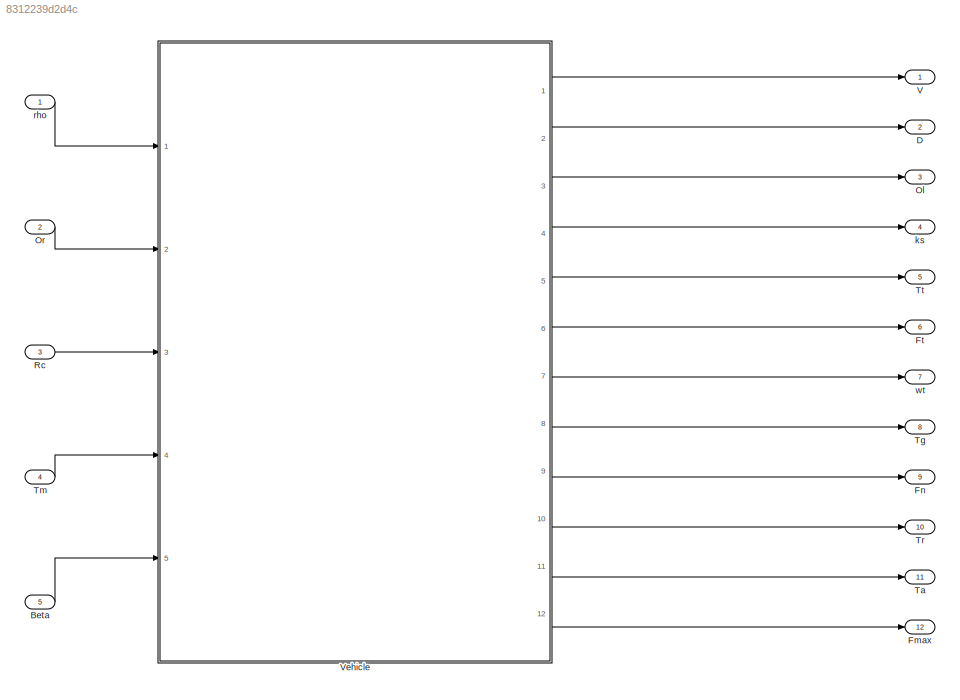
MODEL slx_8312239d2d4c
KIND model
BLOCK [Inport] Beta
  IconDisplay = Port number
  Port = 5
BLOCK [Outport] D
  IconDisplay = Port number
  Port = 2
BLOCK [Outport] Fmax
  IconDisplay = Port number
  Port = 12
BLOCK [Outport] Fn
  IconDisplay = Port number
  Port = 9
BLOCK [Outport] Ft
  IconDisplay = Port number
  Port = 6
BLOCK [Outport] Ol
  IconDisplay = Port number
  Port = 3
BLOCK [Inport] Or
  IconDisplay = Port number
  Port = 2
BLOCK [Inport] Rc
  IconDisplay = Port number
  Port = 3
BLOCK [Outport] Ta
  IconDisplay = Port number
  Port = 11
BLOCK [Outport] Tg
  IconDisplay = Port number
  Port = 8
BLOCK [Inport] Tm
  IconDisplay = Port number
  Port = 4
BLOCK [Outport] Tr
  IconDisplay = Port number
  Port = 10
BLOCK [Outport] Tt
  IconDisplay = Port number
  Port = 5
BLOCK [Outport] V
  IconDisplay = Port number
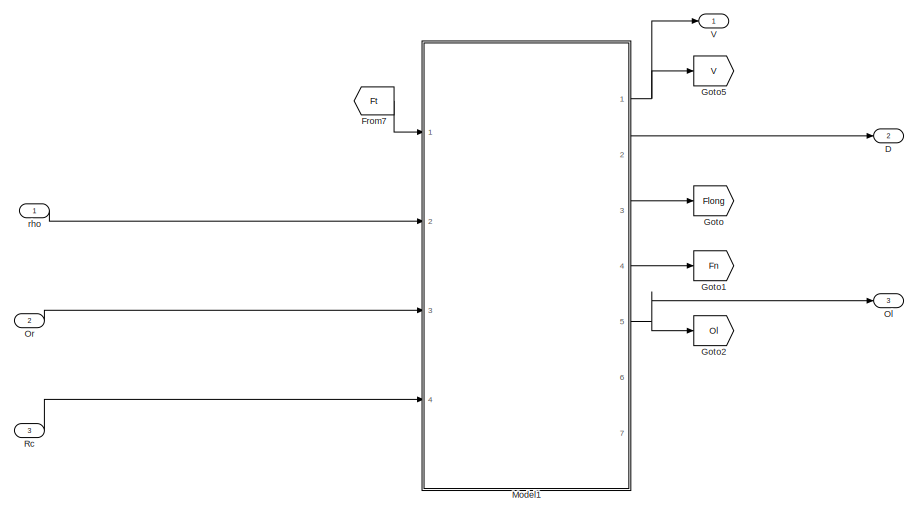
[diagram: Vehicle - part 1/2, full width, top band]
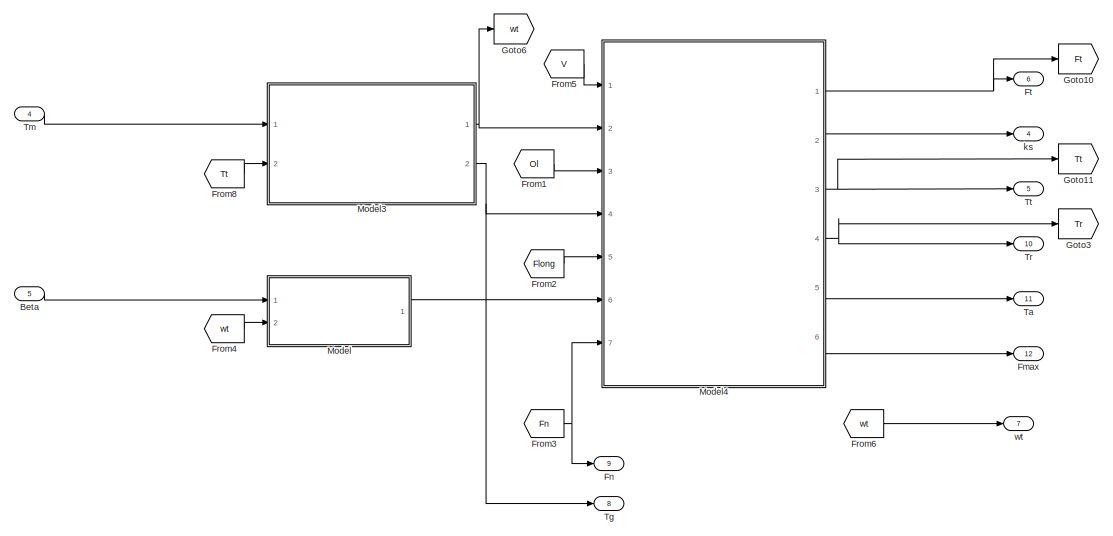
[diagram: Vehicle - part 2/2, full width, bottom band]
BLOCK [SubSystem] Vehicle
  FunctionWithSeparateData = off
  MaskHideContents = off
  MinAlgLoopOccurrences = off
  Opaque = off
  Ports = [5, 12]
  PropExecContextOutsideSubsystem = off
  RTWSystemCode = Auto
  RequestExecContextInheritance = off
BLOCK [Inport] Vehicle/Beta
  IconDisplay = Port number
  Port = 5
BLOCK [Outport] Vehicle/D
  IconDisplay = Port number
  Port = 2
BLOCK [Outport] Vehicle/Fmax 
  IconDisplay = Port number
  Port = 12
BLOCK [Outport] Vehicle/Fn
  IconDisplay = Port number
  Port = 9
BLOCK [From] Vehicle/From1
  GotoTag = Ol
BLOCK [From] Vehicle/From2
  GotoTag = Flong
BLOCK [From] Vehicle/From3
  GotoTag = Fn
BLOCK [From] Vehicle/From4
  GotoTag = wt
BLOCK [From] Vehicle/From5
  GotoTag = V
BLOCK [From] Vehicle/From6
  GotoTag = wt
BLOCK [From] Vehicle/From7
  GotoTag = Ft
BLOCK [From] Vehicle/From8
  GotoTag = Tt
BLOCK [Outport] Vehicle/Ft
  IconDisplay = Port number
  Port = 6
BLOCK [Goto] Vehicle/Goto
  GotoTag = Flong
BLOCK [Goto] Vehicle/Goto1
  GotoTag = Fn
BLOCK [Goto] Vehicle/Goto10
  GotoTag = Ft
BLOCK [Goto] Vehicle/Goto11
  GotoTag = Tt
BLOCK [Goto] Vehicle/Goto2
  GotoTag = Ol
BLOCK [Goto] Vehicle/Goto3
  GotoTag = Tr
BLOCK [Goto] Vehicle/Goto5
  GotoTag = V
BLOCK [Goto] Vehicle/Goto6
  GotoTag = wt
BLOCK [ModelReference] Vehicle/Model
  CopyOfModelName = Brakes.slx
  DefaultDataLogging = on
  ModelNameDialog = Brakes.slx
  ModelReferenceVersion = 1.5
  Ports = [2, 1]
BLOCK [ModelReference] Vehicle/Model1
  CopyOfModelName = Chassis.slx
  DefaultDataLogging = on
  ModelNameDialog = Chassis.slx
  ModelReferenceVersion = 1.16
  Ports = [4, 7]
BLOCK [ModelReference] Vehicle/Model3
  CopyOfModelName = Gear_Chain.slx
  DefaultDataLogging = on
  ModelNameDialog = Gear_Chain.slx
  ModelReferenceVersion = 1.15
  Ports = [2, 2]
BLOCK [ModelReference] Vehicle/Model4
  CopyOfModelName = Tires.slx
  DefaultDataLogging = on
  ModelNameDialog = Tires.slx
  ModelReferenceVersion = 1.77
  Ports = [7, 6]
BLOCK [Outport] Vehicle/Ol
  IconDisplay = Port number
  Port = 3
BLOCK [Inport] Vehicle/Or
  IconDisplay = Port number
  Port = 2
BLOCK [Inport] Vehicle/Rc
  IconDisplay = Port number
  Port = 3
BLOCK [Outport] Vehicle/Ta
  IconDisplay = Port number
  Port = 11
BLOCK [Outport] Vehicle/Tg
  IconDisplay = Port number
  Port = 8
BLOCK [Inport] Vehicle/Tm
  IconDisplay = Port number
  Port = 4
BLOCK [Outport] Vehicle/Tr
  IconDisplay = Port number
  Port = 10
BLOCK [Outport] Vehicle/Tt
  IconDisplay = Port number
  Port = 5
BLOCK [Outport] Vehicle/V
  IconDisplay = Port number
BLOCK [Outport] Vehicle/ks
  IconDisplay = Port number
  Port = 4
BLOCK [Inport] Vehicle/rho
  IconDisplay = Port number
BLOCK [Outport] Vehicle/wt
  IconDisplay = Port number
  Port = 7
BLOCK [Outport] ks
  IconDisplay = Port number
  Port = 4
BLOCK [Inport] rho
  IconDisplay = Port number
BLOCK [Outport] wt
  IconDisplay = Port number
  Port = 7
LINE Beta:1 -> Vehicle:5
LINE Or:1 -> Vehicle:2
LINE Rc:1 -> Vehicle:3
LINE Tm:1 -> Vehicle:4
LINE Vehicle/Beta:1 -> Vehicle/Model:1
LINE Vehicle/From1:1 -> Vehicle/Model4:3
LINE Vehicle/From2:1 -> Vehicle/Model4:5
NET Vehicle/From3:1 -> Vehicle/Fn:1, Vehicle/Model4:7
LINE Vehicle/From4:1 -> Vehicle/Model:2
LINE Vehicle/From5:1 -> Vehicle/Model4:1
LINE Vehicle/From6:1 -> Vehicle/wt:1
LINE Vehicle/From7:1 -> Vehicle/Model1:1
LINE Vehicle/From8:1 -> Vehicle/Model3:2
NET Vehicle/Model1:1 -> Vehicle/Goto5:1, Vehicle/V:1
LINE Vehicle/Model1:2 -> Vehicle/D:1
LINE Vehicle/Model1:3 -> Vehicle/Goto:1
LINE Vehicle/Model1:4 -> Vehicle/Goto1:1
NET Vehicle/Model1:5 -> Vehicle/Goto2:1, Vehicle/Ol:1
NET Vehicle/Model3:1 -> Vehicle/Goto6:1, Vehicle/Model4:2
NET Vehicle/Model3:2 -> Vehicle/Model4:4, Vehicle/Tg:1
NET Vehicle/Model4:1 -> Vehicle/Ft:1, Vehicle/Goto10:1
LINE Vehicle/Model4:2 -> Vehicle/ks:1
NET Vehicle/Model4:3 -> Vehicle/Goto11:1, Vehicle/Tt:1
NET Vehicle/Model4:4 -> Vehicle/Goto3:1, Vehicle/Tr:1
LINE Vehicle/Model4:5 -> Vehicle/Ta:1
LINE Vehicle/Model4:6 -> Vehicle/Fmax :1
LINE Vehicle/Model:1 -> Vehicle/Model4:6
LINE Vehicle/Or:1 -> Vehicle/Model1:3
LINE Vehicle/Rc:1 -> Vehicle/Model1:4
LINE Vehicle/Tm:1 -> Vehicle/Model3:1
LINE Vehicle/rho:1 -> Vehicle/Model1:2
LINE Vehicle:1 -> V:1
LINE Vehicle:10 -> Tr:1
LINE Vehicle:11 -> Ta:1
LINE Vehicle:12 -> Fmax:1
LINE Vehicle:2 -> D:1
LINE Vehicle:3 -> Ol:1
LINE Vehicle:4 -> ks:1
LINE Vehicle:5 -> Tt:1
LINE Vehicle:6 -> Ft:1
LINE Vehicle:7 -> wt:1
LINE Vehicle:8 -> Tg:1
LINE Vehicle:9 -> Fn:1
LINE rho:1 -> Vehicle:1
note: NET lines group one-source signal fan-out (src -> all destinations, sorted); 1:1 wires keep LINE
